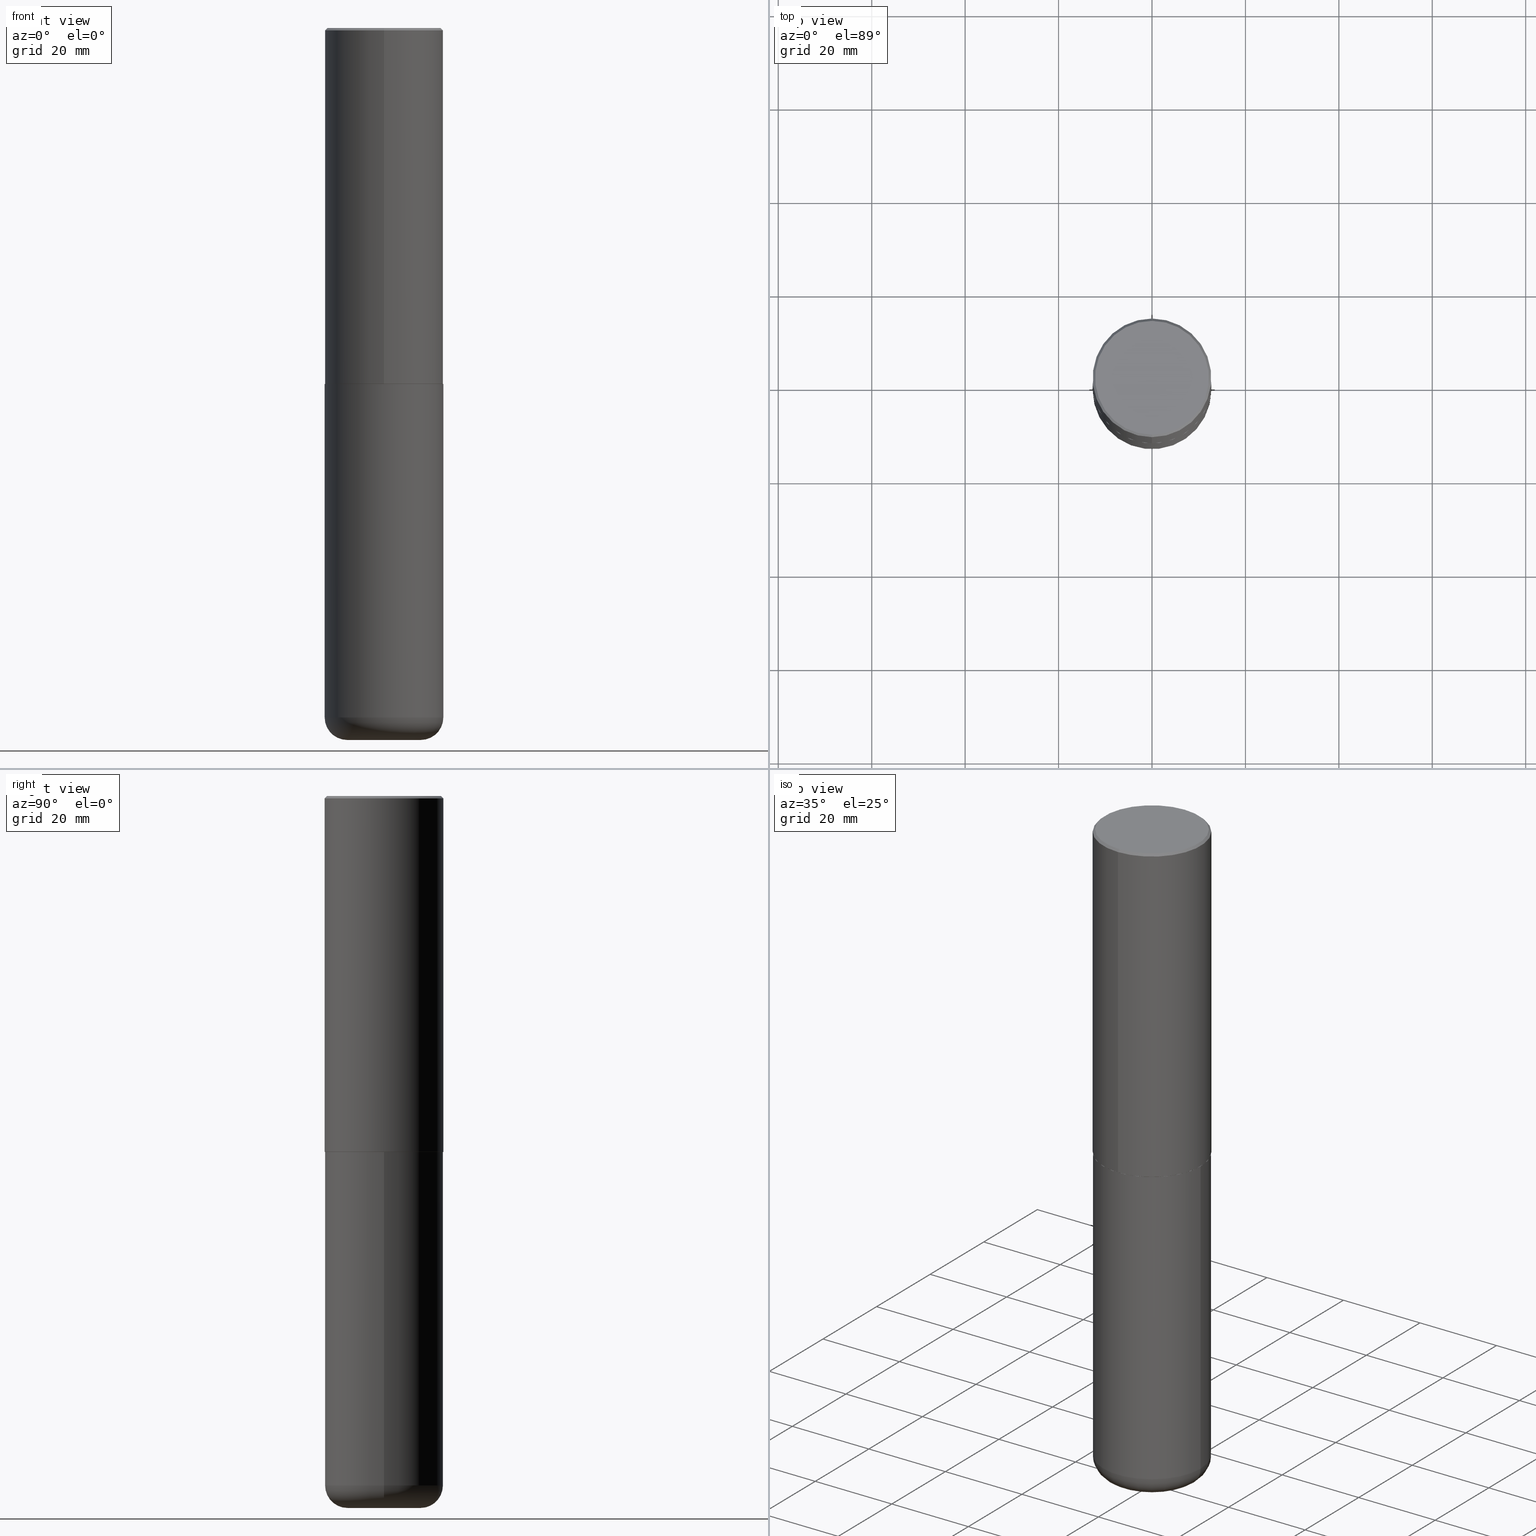
[diagram: canonical four-view strip — front | top / right | iso, engineering-drawing reading convention]
A machine part, canonical four-view strip (front | top / right | iso — engineering-drawing reading convention). The complete STEP part file that produces these views, byte-faithful:
ISO-10303-21;
HEADER;
FILE_DESCRIPTION (( 'STEP AP203' ),
    '1' );
FILE_NAME ('37745.STEP',
    '2024-03-02T10:14:02',
    ( '' ),
    ( '' ),
    'SwSTEP 2.0',
    'SolidWorks 2023',
    '' );
FILE_SCHEMA (( 'CONFIG_CONTROL_DESIGN' ));
ENDSEC;

DATA;
#1 = PERSON_AND_ORGANIZATION_ROLE ( 'design_supplier' ) ;
#2 = CIRCLE ( 'NONE', #299, 0.1899999999999999467 ) ;
#3 = CARTESIAN_POINT ( 'NONE',  ( 7.334694101099137475E-29, -1.047689615258587837E-14, -3.000000000000000444 ) ) ;
#4 = VECTOR ( 'NONE', #203, 39.37007874015748143 ) ;
#5 = EDGE_CURVE ( 'NONE', #96, #113, #82, .T. ) ;
#6 = ORIENTED_EDGE ( 'NONE', *, *, #261, .T. ) ;
#7 = APPROVAL_ROLE ( '' ) ;
#8 = FACE_OUTER_BOUND ( 'NONE', #287, .T. ) ;
#9 = ORIENTED_EDGE ( 'NONE', *, *, #178, .F. ) ;
#10 = ORIENTED_EDGE ( 'NONE', *, *, #329, .F. ) ;
#11 = DIRECTION ( 'NONE',  ( -2.444898033699712212E-29, 3.492298717528625990E-15, 1.000000000000000000 ) ) ;
#12 = LOCAL_TIME ( 5, 14, 2.000000000000000000, #228 ) ;
#13 = VERTEX_POINT ( 'NONE', #49 ) ;
#14 = CARTESIAN_POINT ( 'NONE',  ( 3.552713678800501718E-15, 0.5000000000000001110, -1.746149358764313390E-15 ) ) ;
#15 = CARTESIAN_POINT ( 'NONE',  ( -0.5000000000000000000, -1.673279289987817518E-14, -5.810000000000000497 ) ) ;
#16 = CARTESIAN_POINT ( 'NONE',  ( 7.336406418555409790E-29, -1.047444401652943635E-14, -3.000000000000000444 ) ) ;
#17 = ADVANCED_BREP_SHAPE_REPRESENTATION ( '37745', ( #60, #66, #114 ), #267 ) ;
#18 = AXIS2_PLACEMENT_3D ( 'NONE', #118, #318, #63 ) ;
#19 = ORIENTED_EDGE ( 'NONE', *, *, #272, .T. ) ;
#20 = ORIENTED_EDGE ( 'NONE', *, *, #309, .F. ) ;
#21 = AXIS2_PLACEMENT_3D ( 'NONE', #80, #306, #43 ) ;
#22 = LOCAL_TIME ( 5, 14, 2.000000000000000000, #68 ) ;
#23 = CC_DESIGN_DATE_AND_TIME_ASSIGNMENT ( #346, #317, ( #301 ) ) ;
#24 = DIRECTION ( 'NONE',  ( -6.982962677686265922E-15, -1.000000000000000000, 3.284787166730577015E-15 ) ) ;
#25 = CALENDAR_DATE ( 2024, 2, 3 ) ;
#26 = DIRECTION ( 'NONE',  ( -2.444898033699711371E-29, 3.492298717528626385E-15, 1.000000000000000000 ) ) ;
#27 = ADVANCED_FACE ( 'NONE', ( #269 ), #276, .T. ) ;
#28 = FACE_OUTER_BOUND ( 'NONE', #191, .T. ) ;
#29 = ORIENTED_EDGE ( 'NONE', *, *, #407, .F. ) ;
#30 = CC_DESIGN_PERSON_AND_ORGANIZATION_ASSIGNMENT ( #282, #87, ( #301 ) ) ;
#31 = DIRECTION ( 'NONE',  ( -4.851104656540946131E-15, -0.7071067811865473507, -0.7071067811865476838 ) ) ;
#32 = ORIENTED_EDGE ( 'NONE', *, *, #329, .T. ) ;
#33 = CALENDAR_DATE ( 2024, 2, 3 ) ;
#34 = EDGE_CURVE ( 'NONE', #275, #223, #374, .T. ) ;
#35 = CARTESIAN_POINT ( 'NONE',  ( -3.491481338843133750E-15, -0.5000000000000001110, 1.746149358764313390E-15 ) ) ;
#36 = EDGE_LOOP ( 'NONE', ( #394, #204 ) ) ;
#37 = AXIS2_PLACEMENT_3D ( 'NONE', #190, #26, #350 ) ;
#38 = CARTESIAN_POINT ( 'NONE',  ( 7.332249203065438921E-29, -1.047340385386834930E-14, -2.999000000000000554 ) ) ;
#39 = VERTEX_POINT ( 'NONE', #333 ) ;
#40 = CARTESIAN_POINT ( 'NONE',  ( 7.336406418555409790E-29, -1.047444401652943635E-14, -3.000000000000000444 ) ) ;
#41 = ORIENTED_EDGE ( 'NONE', *, *, #367, .T. ) ;
#42 = DIRECTION ( 'NONE',  ( -6.982962677686265922E-15, -1.000000000000000000, 3.284787166730577015E-15 ) ) ;
#43 = DIRECTION ( 'NONE',  ( 6.982962677686265922E-15, 1.000000000000000000, -3.492298717528626385E-15 ) ) ;
#44 = CARTESIAN_POINT ( 'NONE',  ( 7.336406418555409790E-29, -1.047444401652943635E-14, -3.000000000000000444 ) ) ;
#45 = AXIS2_PLACEMENT_3D ( 'NONE', #153, #278, #311 ) ;
#46 = DIRECTION ( 'NONE',  ( -2.444898033699712212E-29, 3.492298717528625990E-15, 1.000000000000000000 ) ) ;
#47 = CARTESIAN_POINT ( 'NONE',  ( 7.334694101099137475E-29, -1.047689615258587837E-14, -3.000000000000000444 ) ) ;
#48 = EDGE_CURVE ( 'NONE', #223, #275, #128, .T. ) ;
#49 = CARTESIAN_POINT ( 'NONE',  ( 3.552713678800539584E-15, 0.4999999999999898970, -2.999000000000001886 ) ) ;
#50 = CIRCLE ( 'NONE', #280, 0.5000000000000000000 ) ;
#51 = TOROIDAL_SURFACE ( 'NONE', #222, 0.3099999999999999978, 0.1899999999999999467 ) ;
#52 = DIRECTION ( 'NONE',  ( -2.445468806185136597E-29, 3.491481338843145583E-15, 1.000000000000000000 ) ) ;
#53 = CC_DESIGN_APPROVAL ( #180, ( #76 ) ) ;
#54 = DIRECTION ( 'NONE',  ( 1.000000000000000000, -6.982962677686270655E-15, 0.000000000000000000 ) ) ;
#55 = APPROVAL_STATUS ( 'not_yet_approved' ) ;
#56 = FACE_OUTER_BOUND ( 'NONE', #325, .T. ) ;
#57 = MECHANICAL_CONTEXT ( 'NONE', #161, 'mechanical' ) ;
#58 = LINE ( 'NONE', #388, #78 ) ;
#59 = EDGE_CURVE ( 'NONE', #227, #39, #188, .T. ) ;
#60 = MANIFOLD_SOLID_BREP ( 'Body-Move/Copy2[1]', #170 ) ;
#61 = DATE_AND_TIME ( #183, #22 ) ;
#62 = APPROVAL_PERSON_ORGANIZATION ( #323, #405, #259 ) ;
#63 = DIRECTION ( 'NONE',  ( 1.000000000000000000, -6.982962677686266711E-15, 4.876176775795935793E-29 ) ) ;
#64 = ORIENTED_EDGE ( 'NONE', *, *, #379, .T. ) ;
#65 = LINE ( 'NONE', #260, #277 ) ;
#66 = MANIFOLD_SOLID_BREP ( 'Body-Move/Copy2[2]', #221 ) ;
#67 = EDGE_LOOP ( 'NONE', ( #168, #201, #19, #322 ) ) ;
#68 = COORDINATED_UNIVERSAL_TIME_OFFSET ( 5, 0, .BEHIND. ) ;
#69 = CARTESIAN_POINT ( 'NONE',  ( 3.421651712066270057E-15, 0.4799999999999999267, -1.573466742882299844E-15 ) ) ;
#70 = AXIS2_PLACEMENT_3D ( 'NONE', #3, #139, #42 ) ;
#71 = DIRECTION ( 'NONE',  ( 5.024295867789263036E-15, 0.7071067811867189912, 0.7071067811863760433 ) ) ;
#72 = ORIENTED_EDGE ( 'NONE', *, *, #393, .T. ) ;
#73 = LINE ( 'NONE', #14, #4 ) ;
#74 = ORIENTED_EDGE ( 'NONE', *, *, #229, .T. ) ;
#75 = LINE ( 'NONE', #293, #307 ) ;
#76 = PRODUCT_DEFINITION ( 'UNKNOWN', '', #213, #295 ) ;
#77 = DIRECTION ( 'NONE',  ( -6.982962677686265922E-15, -1.000000000000000000, 3.284787166730577015E-15 ) ) ;
#78 = VECTOR ( 'NONE', #187, 39.37007874015748143 ) ;
#79 = DIRECTION ( 'NONE',  ( -6.982962677686265922E-15, -1.000000000000000000, 3.492298717528625990E-15 ) ) ;
#80 = CARTESIAN_POINT ( 'NONE',  ( 3.351822085289407153E-15, 0.4799999999999999267, -1.624885063648019971E-15 ) ) ;
#81 = CARTESIAN_POINT ( 'NONE',  ( 1.467281283711081958E-28, -2.094888803305887271E-14, -6.000000000000000888 ) ) ;
#82 = CIRCLE ( 'NONE', #100, 0.1899999999999999467 ) ;
#83 = CARTESIAN_POINT ( 'NONE',  ( 0.3099999999999999978, -2.245022500876142257E-14, -5.810000000000000497 ) ) ;
#84 = CIRCLE ( 'NONE', #189, 0.4799999999999999267 ) ;
#85 = DIRECTION ( 'NONE',  ( -2.445468806185136597E-29, 3.491481338843145583E-15, 1.000000000000000000 ) ) ;
#86 = DIRECTION ( 'NONE',  ( 6.982962677686265922E-15, 1.000000000000000000, -3.491643216902136408E-15 ) ) ;
#87 = PERSON_AND_ORGANIZATION_ROLE ( 'classification_officer' ) ;
#88 = FACE_OUTER_BOUND ( 'NONE', #362, .T. ) ;
#89 = EDGE_CURVE ( 'NONE', #144, #291, #2, .T. ) ;
#90 = ORIENTED_EDGE ( 'NONE', *, *, #178, .T. ) ;
#91 = PERSON_AND_ORGANIZATION_ROLE ( 'creator' ) ;
#92 = AXIS2_PLACEMENT_3D ( 'NONE', #38, #134, #103 ) ;
#93 = DIRECTION ( 'NONE',  ( 1.000000000000000000, -6.982962677686264344E-15, 4.883557194083112340E-29 ) ) ;
#94 = ORIENTED_EDGE ( 'NONE', *, *, #89, .T. ) ;
#95 = PERSON_AND_ORGANIZATION ( #143, #102 ) ;
#96 = VERTEX_POINT ( 'NONE', #237 ) ;
#97 = COORDINATED_UNIVERSAL_TIME_OFFSET ( 5, 0, .BEHIND. ) ;
#98 =( LENGTH_UNIT ( ) NAMED_UNIT ( * ) SI_UNIT ( $, .METRE. ) );
#99 = ORIENTED_EDGE ( 'NONE', *, *, #256, .F. ) ;
#100 = AXIS2_PLACEMENT_3D ( 'NONE', #371, #140, #408 ) ;
#101 = EDGE_CURVE ( 'NONE', #113, #227, #274, .T. ) ;
#102 = ORGANIZATION ( 'UNSPECIFIED', 'UNSPECIFIED', '' ) ;
#103 = DIRECTION ( 'NONE',  ( -6.982962677686266711E-15, -1.000000000000000000, 3.278217592397114284E-15 ) ) ;
#104 = ORIENTED_EDGE ( 'NONE', *, *, #256, .T. ) ;
#105 = DIRECTION ( 'NONE',  ( 1.000000000000000000, -6.982962677686266711E-15, 4.876176775795935793E-29 ) ) ;
#106 = DIRECTION ( 'NONE',  ( 6.982962677686265922E-15, 1.000000000000000000, -3.491643216902136408E-15 ) ) ;
#107 = DIRECTION ( 'NONE',  ( -2.444898033699712212E-29, 3.492298717528625990E-15, 1.000000000000000000 ) ) ;
#108 = ADVANCED_FACE ( 'NONE', ( #210 ), #369, .T. ) ;
#109 = CARTESIAN_POINT ( 'NONE',  ( 3.491481338843133355E-15, 0.4999999999999999445, -0.02000000000000185310 ) ) ;
#110 = AXIS2_PLACEMENT_3D ( 'NONE', #399, #303, #106 ) ;
#111 = CIRCLE ( 'NONE', #45, 0.5000000000000000000 ) ;
#112 = ORIENTED_EDGE ( 'NONE', *, *, #34, .T. ) ;
#113 = VERTEX_POINT ( 'NONE', #15 ) ;
#114 = AXIS2_PLACEMENT_3D ( 'NONE', #186, #219, #125 ) ;
#115 = CC_DESIGN_PERSON_AND_ORGANIZATION_ASSIGNMENT ( #378, #122, ( #304 ) ) ;
#116 = ORIENTED_EDGE ( 'NONE', *, *, #59, .F. ) ;
#117 = EDGE_CURVE ( 'NONE', #291, #39, #271, .T. ) ;
#118 = CARTESIAN_POINT ( 'NONE',  ( 0.000000000000000000, 0.000000000000000000, 0.000000000000000000 ) ) ;
#119 = AXIS2_PLACEMENT_3D ( 'NONE', #47, #404, #77 ) ;
#120 = VECTOR ( 'NONE', #357, 39.37007874015748143 ) ;
#121 = FACE_OUTER_BOUND ( 'NONE', #194, .T. ) ;
#122 = PERSON_AND_ORGANIZATION_ROLE ( 'design_owner' ) ;
#123 = PLANE ( 'NONE',  #248 ) ;
#124 = ORIENTED_EDGE ( 'NONE', *, *, #48, .T. ) ;
#125 = DIRECTION ( 'NONE',  ( 1.000000000000000000, 0.000000000000000000, 0.000000000000000000 ) ) ;
#126 = CARTESIAN_POINT ( 'NONE',  ( 1.420817376393564695E-28, -2.028550657867867926E-14, -5.810000000000000497 ) ) ;
#127 = EDGE_LOOP ( 'NONE', ( #9, #294 ) ) ;
#128 = CIRCLE ( 'NONE', #341, 0.4989999999999999991 ) ;
#129 = CALENDAR_DATE ( 2024, 2, 3 ) ;
#130 = AXIS2_PLACEMENT_3D ( 'NONE', #400, #107, #392 ) ;
#131 = FACE_OUTER_BOUND ( 'NONE', #415, .T. ) ;
#132 = ORIENTED_EDGE ( 'NONE', *, *, #390, .T. ) ;
#133 = PERSON_AND_ORGANIZATION ( #143, #102 ) ;
#134 = DIRECTION ( 'NONE',  ( -2.444898033699712212E-29, 3.492298717528625990E-15, 1.000000000000000000 ) ) ;
#135 = ORIENTED_EDGE ( 'NONE', *, *, #373, .F. ) ;
#136 = ORIENTED_EDGE ( 'NONE', *, *, #34, .F. ) ;
#137 = EDGE_CURVE ( 'NONE', #113, #291, #396, .T. ) ;
#138 = CC_DESIGN_APPROVAL ( #405, ( #213 ) ) ;
#139 = DIRECTION ( 'NONE',  ( -2.444898033699712212E-29, 3.492298717528625990E-15, 1.000000000000000000 ) ) ;
#140 = DIRECTION ( 'NONE',  ( 7.105427357601001859E-15, 1.000000000000000000, -3.491481338843145583E-15 ) ) ;
#141 = DIRECTION ( 'NONE',  ( 2.438088387897960049E-29, -3.491481338843145188E-15, -1.000000000000000000 ) ) ;
#142 = ORIENTED_EDGE ( 'NONE', *, *, #137, .T. ) ;
#143 = PERSON ( 'UNSPECIFIED', 'UNSPECIFIED', 'UNSPECIFIED', ('UNSPECIFIED'), ('UNSPECIFIED'), ('UNSPECIFIED') ) ;
#144 = VERTEX_POINT ( 'NONE', #300 ) ;
#145 = CIRCLE ( 'NONE', #92, 0.5000000000000002220 ) ;
#146 = VERTEX_POINT ( 'NONE', #109 ) ;
#147 = DIRECTION ( 'NONE',  ( -2.444898033699712212E-29, 3.492298717528625990E-15, 1.000000000000000000 ) ) ;
#148 = AXIS2_PLACEMENT_3D ( 'NONE', #243, #173, #79 ) ;
#149 = AXIS2_PLACEMENT_3D ( 'NONE', #44, #172, #302 ) ;
#150 = PLANE ( 'NONE',  #37 ) ;
#151 = CC_DESIGN_PERSON_AND_ORGANIZATION_ASSIGNMENT ( #133, #1, ( #213 ) ) ;
#152 = APPROVAL_STATUS ( 'not_yet_approved' ) ;
#153 = CARTESIAN_POINT ( 'NONE',  ( 4.889796067399450837E-31, -6.984597435057287381E-17, -0.02000000000000010797 ) ) ;
#154 = DIMENSIONAL_EXPONENTS ( 1.000000000000000000, 0.000000000000000000, 0.000000000000000000, 0.000000000000000000, 0.000000000000000000, 0.000000000000000000, 0.000000000000000000 ) ;
#155 = APPROVAL_PERSON_ORGANIZATION ( #95, #180, #159 ) ;
#156 = ADVANCED_FACE ( 'NONE', ( #336 ), #238, .F. ) ;
#157 = CYLINDRICAL_SURFACE ( 'NONE', #207, 0.5000000000000001110 ) ;
#158 = VERTEX_POINT ( 'NONE', #169 ) ;
#159 = APPROVAL_ROLE ( '' ) ;
#160 = DIRECTION ( 'NONE',  ( -6.982962677686265922E-15, -1.000000000000000000, 3.492298717528625990E-15 ) ) ;
#161 = APPLICATION_CONTEXT ( 'configuration controlled 3d designs of mechanical parts and assemblies' ) ;
#162 = ORIENTED_EDGE ( 'NONE', *, *, #272, .F. ) ;
#163 = DATE_AND_TIME ( #25, #370 ) ;
#164 = AXIS2_PLACEMENT_3D ( 'NONE', #126, #354, #255 ) ;
#165 = EDGE_LOOP ( 'NONE', ( #29, #6, #104, #10 ) ) ;
#166 = DIRECTION ( 'NONE',  ( -2.445468806185136597E-29, 3.491481338843145583E-15, 1.000000000000000000 ) ) ;
#167 = ORIENTED_EDGE ( 'NONE', *, *, #393, .F. ) ;
#168 = ORIENTED_EDGE ( 'NONE', *, *, #342, .F. ) ;
#169 = CARTESIAN_POINT ( 'NONE',  ( -3.361644018908049661E-15, -0.4799999999999999267, 1.779140025945180744E-15 ) ) ;
#170 = CLOSED_SHELL ( 'NONE', ( #364, #196, #401, #249, #289, #337 ) ) ;
#171 = CC_DESIGN_APPROVAL ( #214, ( #301 ) ) ;
#172 = DIRECTION ( 'NONE',  ( -2.445468806185136597E-29, 3.491481338843145583E-15, 1.000000000000000000 ) ) ;
#173 = DIRECTION ( 'NONE',  ( -2.444898033699712212E-29, 3.492298717528625990E-15, 1.000000000000000000 ) ) ;
#174 = CC_DESIGN_PERSON_AND_ORGANIZATION_ASSIGNMENT ( #356, #91, ( #213 ) ) ;
#175 = ORIENTED_EDGE ( 'NONE', *, *, #390, .F. ) ;
#176 = DIRECTION ( 'NONE',  ( -2.445468806185136877E-29, 3.491481338843145188E-15, 1.000000000000000000 ) ) ;
#177 = CIRCLE ( 'NONE', #240, 0.5000000000000002220 ) ;
#178 = EDGE_CURVE ( 'NONE', #144, #96, #212, .T. ) ;
#179 = DIRECTION ( 'NONE',  ( 1.000000000000000000, -6.982962677686263555E-15, 0.000000000000000000 ) ) ;
#180 = APPROVAL ( #152, 'UNSPECIFIED' ) ;
#181 = CIRCLE ( 'NONE', #149, 0.5000000000000000000 ) ;
#182 = CARTESIAN_POINT ( 'NONE',  ( 7.334694101099137475E-29, -1.047689615258587837E-14, -3.000000000000000444 ) ) ;
#183 = CALENDAR_DATE ( 2024, 2, 3 ) ;
#184 = DIRECTION ( 'NONE',  ( -2.444898033699712212E-29, 3.492298717528625990E-15, 1.000000000000000000 ) ) ;
#185 = EDGE_CURVE ( 'NONE', #146, #319, #231, .T. ) ;
#186 = CARTESIAN_POINT ( 'NONE',  ( 0.000000000000000000, 0.000000000000000000, 0.000000000000000000 ) ) ;
#187 = DIRECTION ( 'NONE',  ( 4.937700262164529898E-15, 0.7071067811865424657, -0.7071067811865525687 ) ) ;
#188 = CIRCLE ( 'NONE', #410, 0.5000000000000000000 ) ;
#189 = AXIS2_PLACEMENT_3D ( 'NONE', #413, #224, #160 ) ;
#190 = CARTESIAN_POINT ( 'NONE',  ( 7.334694101099137475E-29, -1.047689615258587837E-14, -3.000000000000000444 ) ) ;
#191 = EDGE_LOOP ( 'NONE', ( #72, #382, #99, #162 ) ) ;
#192 = APPLICATION_PROTOCOL_DEFINITION ( 'international standard', 'config_control_design', 1994, #298 ) ;
#193 = LINE ( 'NONE', #35, #310 ) ;
#194 = EDGE_LOOP ( 'NONE', ( #266, #142, #232, #116 ) ) ;
#195 = APPLICATION_PROTOCOL_DEFINITION ( 'international standard', 'config_control_design', 1994, #161 ) ;
#196 = ADVANCED_FACE ( 'NONE', ( #250 ), #239, .T. ) ;
#197 =( CONVERSION_BASED_UNIT ( 'INCH', #296 ) LENGTH_UNIT ( ) NAMED_UNIT ( #154 ) );
#198 = CONICAL_SURFACE ( 'NONE', #360, 0.4989999999999999991, 0.7853981633976873100 ) ;
#199 = ORIENTED_EDGE ( 'NONE', *, *, #5, .T. ) ;
#200 = LINE ( 'NONE', #395, #120 ) ;
#201 = ORIENTED_EDGE ( 'NONE', *, *, #348, .T. ) ;
#202 = EDGE_LOOP ( 'NONE', ( #132, #327 ) ) ;
#203 = DIRECTION ( 'NONE',  ( -2.444898033699711931E-29, 3.492298717528626385E-15, 1.000000000000000000 ) ) ;
#204 = ORIENTED_EDGE ( 'NONE', *, *, #407, .T. ) ;
#205 = ADVANCED_FACE ( 'NONE', ( #56 ), #198, .T. ) ;
#206 = AXIS2_PLACEMENT_3D ( 'NONE', #81, #52, #179 ) ;
#207 = AXIS2_PLACEMENT_3D ( 'NONE', #283, #418, #414 ) ;
#208 = DIRECTION ( 'NONE',  ( -2.445468806185136597E-29, 3.491481338843145583E-15, 1.000000000000000000 ) ) ;
#209 = PRODUCT_DEFINITION_SHAPE ( 'NONE', 'NONE',  #76 ) ;
#210 = FACE_OUTER_BOUND ( 'NONE', #67, .T. ) ;
#211 = CARTESIAN_POINT ( 'NONE',  ( -0.5000000000000000000, 3.552713678800500929E-15, -2.459467545127452891E-29 ) ) ;
#212 = CIRCLE ( 'NONE', #206, 0.3099999999999999978 ) ;
#213 = PRODUCT_DEFINITION_FORMATION_WITH_SPECIFIED_SOURCE ( 'ANY', '', #304, .NOT_KNOWN. ) ;
#214 = APPROVAL ( #55, 'UNSPECIFIED' ) ;
#215 = DIRECTION ( 'NONE',  ( -2.444898033699711931E-29, 3.492298717528626385E-15, 1.000000000000000000 ) ) ;
#216 = FACE_OUTER_BOUND ( 'NONE', #235, .T. ) ;
#217 = ADVANCED_FACE ( 'NONE', ( #131 ), #150, .F. ) ;
#218 = CARTESIAN_POINT ( 'NONE',  ( 1.420817376393564695E-28, -2.028550657867867926E-14, -5.810000000000000497 ) ) ;
#219 = DIRECTION ( 'NONE',  ( 0.000000000000000000, 0.000000000000000000, 1.000000000000000000 ) ) ;
#220 = DIRECTION ( 'NONE',  ( -6.982962677686265922E-15, -1.000000000000000000, 3.491643216902136408E-15 ) ) ;
#221 = CLOSED_SHELL ( 'NONE', ( #339, #335, #27, #234, #108, #205, #217, #156 ) ) ;
#222 = AXIS2_PLACEMENT_3D ( 'NONE', #218, #247, #93 ) ;
#223 = VERTEX_POINT ( 'NONE', #344 ) ;
#224 = DIRECTION ( 'NONE',  ( -2.444898033699712212E-29, 3.492298717528625990E-15, 1.000000000000000000 ) ) ;
#225 = ORIENTED_EDGE ( 'NONE', *, *, #48, .F. ) ;
#226 = DATE_AND_TIME ( #320, #12 ) ;
#227 = VERTEX_POINT ( 'NONE', #377 ) ;
#228 = COORDINATED_UNIVERSAL_TIME_OFFSET ( 5, 0, .BEHIND. ) ;
#229 = EDGE_CURVE ( 'NONE', #291, #113, #50, .T. ) ;
#230 =( NAMED_UNIT ( * ) SI_UNIT ( $, .STERADIAN. ) SOLID_ANGLE_UNIT ( ) );
#231 = CIRCLE ( 'NONE', #257, 0.5000000000000000000 ) ;
#232 = ORIENTED_EDGE ( 'NONE', *, *, #117, .T. ) ;
#233 = CIRCLE ( 'NONE', #130, 0.4799999999999999267 ) ;
#234 = ADVANCED_FACE ( 'NONE', ( #216 ), #244, .T. ) ;
#235 = EDGE_LOOP ( 'NONE', ( #258, #20, #32, #265 ) ) ;
#236 = CARTESIAN_POINT ( 'NONE',  ( 1.467281283711081958E-28, -2.094888803305887271E-14, -6.000000000000000888 ) ) ;
#237 = CARTESIAN_POINT ( 'NONE',  ( -0.3099999999999999978, -1.773949922604037162E-14, -6.000000000000000888 ) ) ;
#238 = PLANE ( 'NONE',  #21 ) ;
#239 = TOROIDAL_SURFACE ( 'NONE', #164, 0.3099999999999999978, 0.1899999999999999467 ) ;
#240 = AXIS2_PLACEMENT_3D ( 'NONE', #324, #11, #359 ) ;
#241 = CARTESIAN_POINT ( 'NONE',  ( 7.334694101099137475E-29, -1.047689615258587837E-14, -3.000000000000000444 ) ) ;
#242 = UNCERTAINTY_MEASURE_WITH_UNIT (LENGTH_MEASURE( 1.000000000000000082E-05 ), #197, 'distance_accuracy_value', 'NONE');
#243 = CARTESIAN_POINT ( 'NONE',  ( 0.000000000000000000, 0.000000000000000000, 0.000000000000000000 ) ) ;
#244 = CONICAL_SURFACE ( 'NONE', #361, 0.5000000000000000000, 0.7853981633974446153 ) ;
#245 = ORIENTED_EDGE ( 'NONE', *, *, #373, .T. ) ;
#246 = AXIS2_PLACEMENT_3D ( 'NONE', #273, #208, #372 ) ;
#247 = DIRECTION ( 'NONE',  ( -2.445468806185136597E-29, 3.491481338843145583E-15, 1.000000000000000000 ) ) ;
#248 = AXIS2_PLACEMENT_3D ( 'NONE', #252, #385, #381 ) ;
#249 = ADVANCED_FACE ( 'NONE', ( #121 ), #312, .T. ) ;
#250 = FACE_OUTER_BOUND ( 'NONE', #387, .T. ) ;
#251 = COORDINATED_UNIVERSAL_TIME_OFFSET ( 5, 0, .BEHIND. ) ;
#252 = CARTESIAN_POINT ( 'NONE',  ( 1.467281283711081958E-28, -2.094888803305887271E-14, -6.000000000000000888 ) ) ;
#253 = ORIENTED_EDGE ( 'NONE', *, *, #137, .F. ) ;
#254 = APPROVAL_DATE_TIME ( #61, #214 ) ;
#255 = DIRECTION ( 'NONE',  ( 1.000000000000000000, -6.982962677686264344E-15, 4.883557194083112340E-29 ) ) ;
#256 = EDGE_CURVE ( 'NONE', #319, #146, #111, .T. ) ;
#257 = AXIS2_PLACEMENT_3D ( 'NONE', #308, #147, #220 ) ;
#258 = ORIENTED_EDGE ( 'NONE', *, *, #261, .F. ) ;
#259 = APPROVAL_ROLE ( '' ) ;
#260 = CARTESIAN_POINT ( 'NONE',  ( -3.430248998885764992E-15, -0.5000000000000001110, -0.01999999999999835937 ) ) ;
#261 = EDGE_CURVE ( 'NONE', #158, #319, #65, .T. ) ;
#262 = ORIENTED_EDGE ( 'NONE', *, *, #101, .T. ) ;
#263 = COORDINATED_UNIVERSAL_TIME_OFFSET ( 5, 0, .BEHIND. ) ;
#264 = CARTESIAN_POINT ( 'NONE',  ( 0.000000000000000000, 0.000000000000000000, 0.000000000000000000 ) ) ;
#265 = ORIENTED_EDGE ( 'NONE', *, *, #185, .T. ) ;
#266 = ORIENTED_EDGE ( 'NONE', *, *, #101, .F. ) ;
#267 =( GEOMETRIC_REPRESENTATION_CONTEXT ( 3 ) GLOBAL_UNCERTAINTY_ASSIGNED_CONTEXT ( ( #242 ) ) GLOBAL_UNIT_ASSIGNED_CONTEXT ( ( #197, #328, #230 ) ) REPRESENTATION_CONTEXT ( 'NONE', 'WORKASPACE' ) );
#268 = CARTESIAN_POINT ( 'NONE',  ( -3.491481338843061569E-15, -0.5000000000000107692, -2.998999999999998778 ) ) ;
#269 = FACE_OUTER_BOUND ( 'NONE', #165, .T. ) ;
#270 = DIRECTION ( 'NONE',  ( -1.000000000000000000, 6.982962677686265922E-15, -4.876176775795935793E-29 ) ) ;
#271 = LINE ( 'NONE', #330, #384 ) ;
#272 = EDGE_CURVE ( 'NONE', #352, #319, #193, .T. ) ;
#273 = CARTESIAN_POINT ( 'NONE',  ( 1.420817376393564695E-28, -2.028550657867867926E-14, -5.810000000000000497 ) ) ;
#274 = LINE ( 'NONE', #211, #332 ) ;
#275 = VERTEX_POINT ( 'NONE', #409 ) ;
#276 = CONICAL_SURFACE ( 'NONE', #110, 0.5000000000000000000, 0.7853981633974446153 ) ;
#277 = VECTOR ( 'NONE', #31, 39.37007874015748143 ) ;
#278 = DIRECTION ( 'NONE',  ( -2.444898033699712212E-29, 3.492298717528625990E-15, 1.000000000000000000 ) ) ;
#279 = APPROVAL_DATE_TIME ( #314, #405 ) ;
#280 = AXIS2_PLACEMENT_3D ( 'NONE', #380, #85, #54 ) ;
#281 = CARTESIAN_POINT ( 'NONE',  ( 0.5000000000000000000, -2.377698791752181577E-14, -5.810000000000000497 ) ) ;
#282 = PERSON_AND_ORGANIZATION ( #143, #102 ) ;
#283 = CARTESIAN_POINT ( 'NONE',  ( 0.000000000000000000, 0.000000000000000000, 0.000000000000000000 ) ) ;
#284 = ORIENTED_EDGE ( 'NONE', *, *, #348, .F. ) ;
#285 = DATE_TIME_ROLE ( 'creation_date' ) ;
#286 = FACE_OUTER_BOUND ( 'NONE', #127, .T. ) ;
#287 = EDGE_LOOP ( 'NONE', ( #74, #262, #175, #365 ) ) ;
#288 = FACE_OUTER_BOUND ( 'NONE', #358, .T. ) ;
#289 = ADVANCED_FACE ( 'NONE', ( #88 ), #51, .T. ) ;
#290 = AXIS2_PLACEMENT_3D ( 'NONE', #264, #166, #105 ) ;
#291 = VERTEX_POINT ( 'NONE', #281 ) ;
#292 = PERSON_AND_ORGANIZATION ( #143, #102 ) ;
#293 = CARTESIAN_POINT ( 'NONE',  ( 3.545608251442972496E-15, 0.4989999999999895630, -3.000000000000001776 ) ) ;
#294 = ORIENTED_EDGE ( 'NONE', *, *, #367, .F. ) ;
#295 = DESIGN_CONTEXT ( 'detailed design', #298, 'design' ) ;
#296 = LENGTH_MEASURE_WITH_UNIT ( LENGTH_MEASURE( 0.02539999999999999897 ), #98 );
#297 = ORIENTED_EDGE ( 'NONE', *, *, #89, .F. ) ;
#298 = APPLICATION_CONTEXT ( 'configuration controlled 3d designs of mechanical parts and assemblies' ) ;
#299 = AXIS2_PLACEMENT_3D ( 'NONE', #83, #403, #368 ) ;
#300 = CARTESIAN_POINT ( 'NONE',  ( 0.3099999999999999978, -2.311360646314161602E-14, -6.000000000000000888 ) ) ;
#301 = SECURITY_CLASSIFICATION ( '', '', #353 ) ;
#302 = DIRECTION ( 'NONE',  ( 1.000000000000000000, -6.982962677686266711E-15, 0.000000000000000000 ) ) ;
#303 = DIRECTION ( 'NONE',  ( 2.444898033699712212E-29, -3.492298717528625990E-15, -1.000000000000000000 ) ) ;
#304 = PRODUCT ( '37745', '37745', '', ( #57 ) ) ;
#305 = ORIENTED_EDGE ( 'NONE', *, *, #5, .F. ) ;
#306 = DIRECTION ( 'NONE',  ( 2.444898033699711371E-29, -3.492298717528626385E-15, -1.000000000000000000 ) ) ;
#307 = VECTOR ( 'NONE', #71, 39.37007874015748143 ) ;
#308 = CARTESIAN_POINT ( 'NONE',  ( 4.889796067399450837E-31, -6.984597435057287381E-17, -0.02000000000000010797 ) ) ;
#309 = EDGE_CURVE ( 'NONE', #389, #158, #84, .T. ) ;
#310 = VECTOR ( 'NONE', #215, 39.37007874015748143 ) ;
#311 = DIRECTION ( 'NONE',  ( -6.982962677686265922E-15, -1.000000000000000000, 3.491643216902136408E-15 ) ) ;
#312 = CYLINDRICAL_SURFACE ( 'NONE', #18, 0.5000000000000000000 ) ;
#313 = CC_DESIGN_PERSON_AND_ORGANIZATION_ASSIGNMENT ( #292, #383, ( #76 ) ) ;
#314 = DATE_AND_TIME ( #33, #316 ) ;
#315 = CARTESIAN_POINT ( 'NONE',  ( 4.889796067399450837E-31, -6.984597435057287381E-17, -0.02000000000000010797 ) ) ;
#316 = LOCAL_TIME ( 5, 14, 2.000000000000000000, #251 ) ;
#317 = DATE_TIME_ROLE ( 'classification_date' ) ;
#318 = DIRECTION ( 'NONE',  ( -2.445468806185136597E-29, 3.491481338843145583E-15, 1.000000000000000000 ) ) ;
#319 = VERTEX_POINT ( 'NONE', #347 ) ;
#320 = CALENDAR_DATE ( 2024, 2, 3 ) ;
#321 = CC_DESIGN_DATE_AND_TIME_ASSIGNMENT ( #163, #285, ( #76 ) ) ;
#322 = ORIENTED_EDGE ( 'NONE', *, *, #185, .F. ) ;
#323 = PERSON_AND_ORGANIZATION ( #143, #102 ) ;
#324 = CARTESIAN_POINT ( 'NONE',  ( 7.332249203065438921E-29, -1.047340385386834930E-14, -2.999000000000000554 ) ) ;
#325 = EDGE_LOOP ( 'NONE', ( #135, #112, #64, #284 ) ) ;
#326 = FACE_OUTER_BOUND ( 'NONE', #202, .T. ) ;
#327 = ORIENTED_EDGE ( 'NONE', *, *, #59, .T. ) ;
#328 =( NAMED_UNIT ( * ) PLANE_ANGLE_UNIT ( ) SI_UNIT ( $, .RADIAN. ) );
#329 = EDGE_CURVE ( 'NONE', #389, #146, #58, .T. ) ;
#330 = CARTESIAN_POINT ( 'NONE',  ( 0.5000000000000000000, -3.491481338843133355E-15, 2.438088387897967896E-29 ) ) ;
#331 = DIRECTION ( 'NONE',  ( -2.445468806185136597E-29, 3.491481338843145583E-15, 1.000000000000000000 ) ) ;
#332 = VECTOR ( 'NONE', #176, 39.37007874015748143 ) ;
#333 = CARTESIAN_POINT ( 'NONE',  ( 0.5000000000000000000, -1.396592535537257129E-14, -3.000000000000000444 ) ) ;
#334 = CIRCLE ( 'NONE', #343, 0.3099999999999999978 ) ;
#335 = ADVANCED_FACE ( 'NONE', ( #28 ), #157, .T. ) ;
#336 = FACE_OUTER_BOUND ( 'NONE', #36, .T. ) ;
#337 = ADVANCED_FACE ( 'NONE', ( #286 ), #123, .T. ) ;
#338 = DIRECTION ( 'NONE',  ( -2.445468806185136597E-29, 3.491481338843145583E-15, 1.000000000000000000 ) ) ;
#339 = ADVANCED_FACE ( 'NONE', ( #288 ), #376, .T. ) ;
#340 = DIRECTION ( 'NONE',  ( -6.982962677686265922E-15, -1.000000000000000000, 3.284787166730577015E-15 ) ) ;
#341 = AXIS2_PLACEMENT_3D ( 'NONE', #241, #46, #340 ) ;
#342 = EDGE_CURVE ( 'NONE', #13, #146, #73, .T. ) ;
#343 = AXIS2_PLACEMENT_3D ( 'NONE', #236, #331, #366 ) ;
#344 = CARTESIAN_POINT ( 'NONE',  ( -3.484498376165373188E-15, -0.4990000000000104352, -2.999999999999998668 ) ) ;
#345 = DIRECTION ( 'NONE',  ( 2.444898033699712212E-29, -3.492298717528625990E-15, -1.000000000000000000 ) ) ;
#346 = DATE_AND_TIME ( #129, #351 ) ;
#347 = CARTESIAN_POINT ( 'NONE',  ( -3.430248998885764992E-15, -0.5000000000000001110, -0.01999999999999835937 ) ) ;
#348 = EDGE_CURVE ( 'NONE', #13, #352, #145, .T. ) ;
#349 = PERSON_AND_ORGANIZATION ( #143, #102 ) ;
#350 = DIRECTION ( 'NONE',  ( -6.982962677686265922E-15, -1.000000000000000000, 3.492298717528626385E-15 ) ) ;
#351 = LOCAL_TIME ( 5, 14, 2.000000000000000000, #263 ) ;
#352 = VERTEX_POINT ( 'NONE', #268 ) ;
#353 = SECURITY_CLASSIFICATION_LEVEL ( 'unclassified' ) ;
#354 = DIRECTION ( 'NONE',  ( -2.445468806185136597E-29, 3.491481338843145583E-15, 1.000000000000000000 ) ) ;
#355 = ORIENTED_EDGE ( 'NONE', *, *, #379, .F. ) ;
#356 = PERSON_AND_ORGANIZATION ( #143, #102 ) ;
#357 = DIRECTION ( 'NONE',  ( -4.937700262165728178E-15, -0.7071067811867141062, 0.7071067811863809283 ) ) ;
#358 = EDGE_LOOP ( 'NONE', ( #124, #245, #167, #355 ) ) ;
#359 = DIRECTION ( 'NONE',  ( -6.982962677686266711E-15, -1.000000000000000000, 3.278217592397114284E-15 ) ) ;
#360 = AXIS2_PLACEMENT_3D ( 'NONE', #182, #184, #24 ) ;
#361 = AXIS2_PLACEMENT_3D ( 'NONE', #315, #345, #86 ) ;
#362 = EDGE_LOOP ( 'NONE', ( #305, #41, #94, #253 ) ) ;
#363 = PLANE ( 'NONE',  #412 ) ;
#364 = ADVANCED_FACE ( 'NONE', ( #8 ), #398, .T. ) ;
#365 = ORIENTED_EDGE ( 'NONE', *, *, #117, .F. ) ;
#366 = DIRECTION ( 'NONE',  ( 1.000000000000000000, -6.982962677686263555E-15, 0.000000000000000000 ) ) ;
#367 = EDGE_CURVE ( 'NONE', #96, #144, #334, .T. ) ;
#368 = DIRECTION ( 'NONE',  ( 1.000000000000000000, -6.982962677686263555E-15, 0.000000000000000000 ) ) ;
#369 = CYLINDRICAL_SURFACE ( 'NONE', #148, 0.5000000000000001110 ) ;
#370 = LOCAL_TIME ( 5, 14, 2.000000000000000000, #97 ) ;
#371 = CARTESIAN_POINT ( 'NONE',  ( -0.3099999999999999978, -1.808282409782236831E-14, -5.810000000000000497 ) ) ;
#372 = DIRECTION ( 'NONE',  ( 1.000000000000000000, -6.982962677686270655E-15, 0.000000000000000000 ) ) ;
#373 = EDGE_CURVE ( 'NONE', #275, #13, #75, .T. ) ;
#374 = CIRCLE ( 'NONE', #119, 0.4989999999999999991 ) ;
#375 = DIRECTION ( 'NONE',  ( 1.000000000000000000, -6.982962677686266711E-15, 0.000000000000000000 ) ) ;
#376 = CONICAL_SURFACE ( 'NONE', #70, 0.4989999999999999991, 0.7853981633976873100 ) ;
#377 = CARTESIAN_POINT ( 'NONE',  ( -0.5000000000000000000, -1.182726161880355609E-14, -3.000000000000000444 ) ) ;
#378 = PERSON_AND_ORGANIZATION ( #143, #102 ) ;
#379 = EDGE_CURVE ( 'NONE', #223, #352, #200, .T. ) ;
#380 = CARTESIAN_POINT ( 'NONE',  ( 1.420817376393564695E-28, -2.028550657867867926E-14, -5.810000000000000497 ) ) ;
#381 = DIRECTION ( 'NONE',  ( -1.000000000000000000, 6.982962677686265922E-15, -4.876176775795935793E-29 ) ) ;
#382 = ORIENTED_EDGE ( 'NONE', *, *, #342, .T. ) ;
#383 = PERSON_AND_ORGANIZATION_ROLE ( 'creator' ) ;
#384 = VECTOR ( 'NONE', #402, 39.37007874015748143 ) ;
#385 = DIRECTION ( 'NONE',  ( 2.438088387897960049E-29, -3.491481338843145188E-15, -1.000000000000000000 ) ) ;
#386 = APPROVAL_PERSON_ORGANIZATION ( #349, #214, #7 ) ;
#387 = EDGE_LOOP ( 'NONE', ( #90, #199, #397, #297 ) ) ;
#388 = CARTESIAN_POINT ( 'NONE',  ( 3.491481338843133355E-15, 0.4999999999999999445, -0.02000000000000185310 ) ) ;
#389 = VERTEX_POINT ( 'NONE', #69 ) ;
#390 = EDGE_CURVE ( 'NONE', #39, #227, #181, .T. ) ;
#391 = APPROVAL_STATUS ( 'not_yet_approved' ) ;
#392 = DIRECTION ( 'NONE',  ( -6.982962677686265922E-15, -1.000000000000000000, 3.492298717528625990E-15 ) ) ;
#393 = EDGE_CURVE ( 'NONE', #352, #13, #177, .T. ) ;
#394 = ORIENTED_EDGE ( 'NONE', *, *, #309, .T. ) ;
#395 = CARTESIAN_POINT ( 'NONE',  ( -3.484498376165373188E-15, -0.4990000000000104352, -2.999999999999998668 ) ) ;
#396 = CIRCLE ( 'NONE', #246, 0.5000000000000000000 ) ;
#397 = ORIENTED_EDGE ( 'NONE', *, *, #229, .F. ) ;
#398 = CYLINDRICAL_SURFACE ( 'NONE', #290, 0.5000000000000000000 ) ;
#399 = CARTESIAN_POINT ( 'NONE',  ( 4.889796067399450837E-31, -6.984597435057287381E-17, -0.02000000000000010797 ) ) ;
#400 = CARTESIAN_POINT ( 'NONE',  ( -2.514251026725007597E-45, 3.591362713352002573E-31, 1.028366415314403880E-16 ) ) ;
#401 = ADVANCED_FACE ( 'NONE', ( #326 ), #363, .F. ) ;
#402 = DIRECTION ( 'NONE',  ( -2.445468806185136877E-29, 3.491481338843145188E-15, 1.000000000000000000 ) ) ;
#403 = DIRECTION ( 'NONE',  ( -6.982962677686266711E-15, -1.000000000000000000, 3.491481338843145583E-15 ) ) ;
#404 = DIRECTION ( 'NONE',  ( -2.444898033699712212E-29, 3.492298717528625990E-15, 1.000000000000000000 ) ) ;
#405 = APPROVAL ( #391, 'UNSPECIFIED' ) ;
#406 = CC_DESIGN_SECURITY_CLASSIFICATION ( #301, ( #213 ) ) ;
#407 = EDGE_CURVE ( 'NONE', #158, #389, #233, .T. ) ;
#408 = DIRECTION ( 'NONE',  ( -1.000000000000000000, 7.105427357600999492E-15, 0.000000000000000000 ) ) ;
#409 = CARTESIAN_POINT ( 'NONE',  ( 3.549160965121773789E-15, 0.4989999999999895630, -3.000000000000001776 ) ) ;
#410 = AXIS2_PLACEMENT_3D ( 'NONE', #16, #338, #375 ) ;
#411 = APPROVAL_DATE_TIME ( #226, #180 ) ;
#412 = AXIS2_PLACEMENT_3D ( 'NONE', #40, #141, #270 ) ;
#413 = CARTESIAN_POINT ( 'NONE',  ( -2.514251026725007597E-45, 3.591362713352002573E-31, 1.028366415314403880E-16 ) ) ;
#414 = DIRECTION ( 'NONE',  ( -6.982962677686265922E-15, -1.000000000000000000, 3.492298717528625990E-15 ) ) ;
#415 = EDGE_LOOP ( 'NONE', ( #225, #136 ) ) ;
#416 = SHAPE_DEFINITION_REPRESENTATION ( #209, #17 ) ;
#417 = PRODUCT_RELATED_PRODUCT_CATEGORY ( 'detail', '', ( #304 ) ) ;
#418 = DIRECTION ( 'NONE',  ( -2.444898033699712212E-29, 3.492298717528625990E-15, 1.000000000000000000 ) ) ;
ENDSEC;
END-ISO-10303-21;
